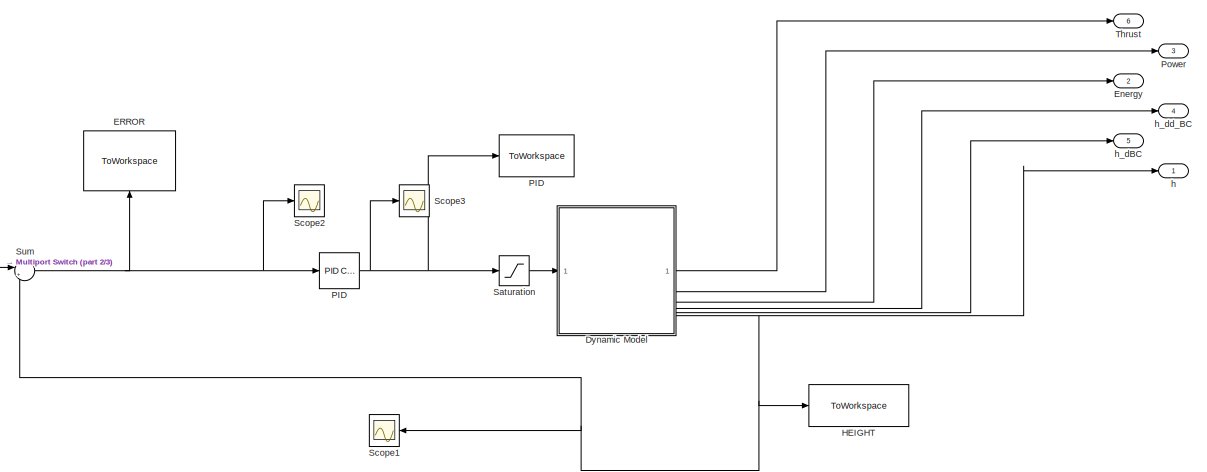
[diagram: root canvas - part 1/3, right side, full height]
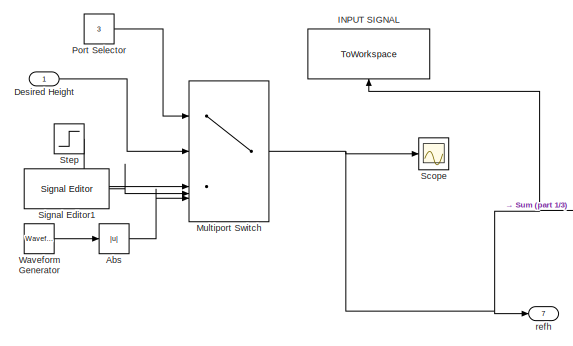
[diagram: root canvas - part 2/3, middle left region]
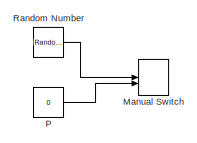
[diagram: root canvas - part 3/3, bottom left region]
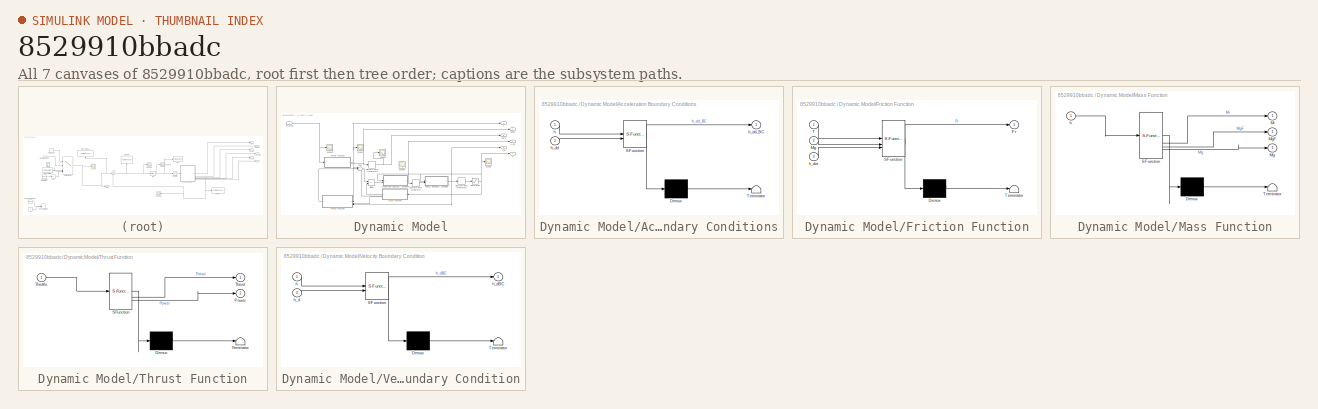
[diagram: thumbnail index - all 7 canvases of the model, root first then tree order]
MODEL slx_8529910bbadc
KIND model
CONFIG AbsTol = auto
CONFIG EnableMultiTasking = off
CONFIG FixedStep = auto
CONFIG MaxStep = auto
CONFIG MinStep = auto
CONFIG RelTol = 1e-3
CONFIG SampleTimeConstraint = Unconstrained
CONFIG SolverName = VariableStepAuto
CONFIG StartTime = 0.0
CONFIG StopTime = 80
BLOCK [Abs] Abs
  SaturateOnIntegerOverflow = off
BLOCK [Inport] Desired Height
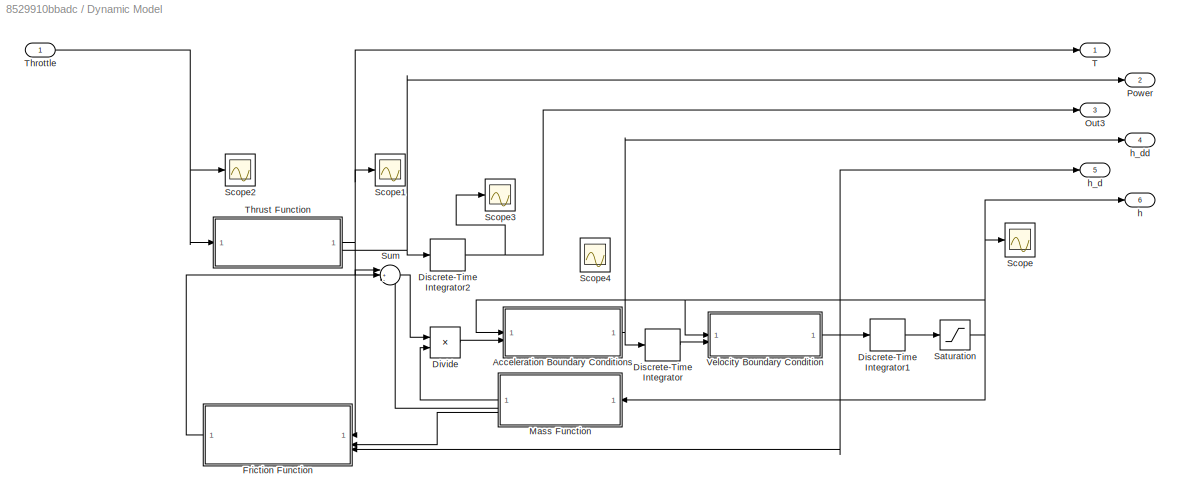
BLOCK [SubSystem] Dynamic Model
BLOCK [SubSystem] Dynamic Model/Acceleration Boundary Conditions
  ErrorFcn = Stateflow.Translate.translate
  PermitHierarchicalResolution = ExplicitOnly
  SFBlockType = MATLAB Function
  TreatAsAtomicUnit = on
BLOCK [Demux] Dynamic Model/Acceleration Boundary Conditions/ Demux 
  Outputs = 1
BLOCK [S-Function] Dynamic Model/Acceleration Boundary Conditions/ SFunction 
  EnableBusSupport = on
  FunctionName = sf_sfun
  PortCounts = [2 2]
  SFcnIsStateOwnerBlock = off
  SFunctionDeploymentMode = off
  Tag = Stateflow S-Function 4
BLOCK [Terminator] Dynamic Model/Acceleration Boundary Conditions/ Terminator 
BLOCK [Inport] Dynamic Model/Acceleration Boundary Conditions/h
BLOCK [Inport] Dynamic Model/Acceleration Boundary Conditions/h_dd
  Port = 2
BLOCK [Outport] Dynamic Model/Acceleration Boundary Conditions/h_dd_BC
BLOCK [DiscreteIntegrator] Dynamic Model/Discrete-Time Integrator
  ICPrevOutput = DiscIntNeverNeededParam
  ICPrevScaledInput = DiscIntNeverNeededParam
  InitialConditionSetting = Auto
  SampleTime = 0.05
BLOCK [DiscreteIntegrator] Dynamic Model/Discrete-Time Integrator1
  ICPrevOutput = DiscIntNeverNeededParam
  ICPrevScaledInput = DiscIntNeverNeededParam
  InitialConditionSetting = Auto
  SampleTime = 0.05
BLOCK [DiscreteIntegrator] Dynamic Model/Discrete-Time Integrator2
  ICPrevOutput = DiscIntNeverNeededParam
  ICPrevScaledInput = DiscIntNeverNeededParam
  InitialConditionSetting = Auto
  SampleTime = 0.05
BLOCK [Product] Dynamic Model/Divide
  Inputs = */
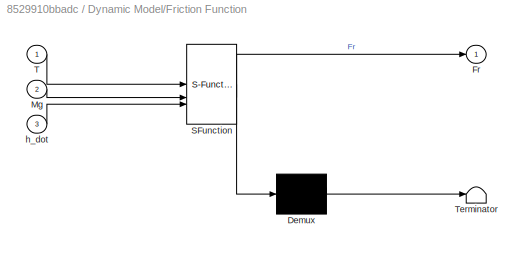
BLOCK [SubSystem] Dynamic Model/Friction Function
  ErrorFcn = Stateflow.Translate.translate
  PermitHierarchicalResolution = ExplicitOnly
  SFBlockType = MATLAB Function
  TreatAsAtomicUnit = on
BLOCK [Demux] Dynamic Model/Friction Function/ Demux 
  Outputs = 1
BLOCK [S-Function] Dynamic Model/Friction Function/ SFunction 
  EnableBusSupport = on
  FunctionName = sf_sfun
  PortCounts = [3 2]
  SFcnIsStateOwnerBlock = off
  SFunctionDeploymentMode = off
  Tag = Stateflow S-Function 3
BLOCK [Terminator] Dynamic Model/Friction Function/ Terminator 
BLOCK [Outport] Dynamic Model/Friction Function/Fr
BLOCK [Inport] Dynamic Model/Friction Function/Mg
  Port = 2
BLOCK [Inport] Dynamic Model/Friction Function/T
BLOCK [Inport] Dynamic Model/Friction Function/h_dot
  Port = 3
BLOCK [SubSystem] Dynamic Model/Mass Function
  ErrorFcn = Stateflow.Translate.translate
  PermitHierarchicalResolution = ExplicitOnly
  SFBlockType = MATLAB Function
  TreatAsAtomicUnit = on
BLOCK [Demux] Dynamic Model/Mass Function/ Demux 
  Outputs = 1
BLOCK [S-Function] Dynamic Model/Mass Function/ SFunction 
  EnableBusSupport = on
  FunctionName = sf_sfun
  PortCounts = [1 4]
  SFcnIsStateOwnerBlock = off
  SFunctionDeploymentMode = off
  Tag = Stateflow S-Function 1
BLOCK [Terminator] Dynamic Model/Mass Function/ Terminator 
BLOCK [Outport] Dynamic Model/Mass Function/Mg
  Port = 3
BLOCK [Outport] Dynamic Model/Mass Function/MgF
  Port = 2
BLOCK [Outport] Dynamic Model/Mass Function/Mi
BLOCK [Inport] Dynamic Model/Mass Function/h
BLOCK [Outport] Dynamic Model/Out3
  Port = 3
BLOCK [Outport] Dynamic Model/Power
  Port = 2
BLOCK [Saturate] Dynamic Model/Saturation
  LowerLimit = 0
  UpperLimit = 1.44
BLOCK [Scope] Dynamic Model/Scope
  Floating = off
  NumInputPorts = 1
  ScopeSpecificationString = Simulink.scopes.TimeScopeBlockCfg('CurrentConfiguration', extmgr.ConfigurationSet(extmgr.Configuration('Core','General UI',true),extmgr.Configuration('Core','Source UI',true),extmgr.Configuration('Sources','WiredSimulink',true),extmgr.Configuration('Visuals','Time Domain',true,'SerializedDisplays',{struct('MinYLimReal','-0.15881','MaxYLimReal','1.42932','YLabelReal','','MinYLimMag','0.00000','MaxY...<+1448ch>
BLOCK [Scope] Dynamic Model/Scope1
  Floating = off
  NumInputPorts = 1
  ScopeSpecificationString = Simulink.scopes.TimeScopeBlockCfg('CurrentConfiguration', extmgr.ConfigurationSet(extmgr.Configuration('Core','General UI',true),extmgr.Configuration('Core','Source UI',true),extmgr.Configuration('Sources','WiredSimulink',true,'DataLoggingVariableName','ScopeData1'),extmgr.Configuration('Visuals','Time Domain',true,'SerializedDisplays',{struct('MinYLimReal','-3.14447','MaxYLimReal','29.14392','YLa...<+1474ch>
BLOCK [Scope] Dynamic Model/Scope2
  Floating = off
  NumInputPorts = 1
  ScopeSpecificationString = Simulink.scopes.TimeScopeBlockCfg('CurrentConfiguration', extmgr.ConfigurationSet(extmgr.Configuration('Core','General UI',true),extmgr.Configuration('Core','Source UI',true),extmgr.Configuration('Sources','WiredSimulink',true,'DataLoggingVariableName','ScopeData2'),extmgr.Configuration('Visuals','Time Domain',true,'SerializedDisplays',{struct('MinYLimReal','-11.25','MaxYLimReal','101.25','YLabelR...<+1448ch>
BLOCK [Scope] Dynamic Model/Scope3
  Floating = off
  NumInputPorts = 1
  ScopeSpecificationString = Simulink.scopes.TimeScopeBlockCfg('CurrentConfiguration', extmgr.ConfigurationSet(extmgr.Configuration('Core','General UI',true),extmgr.Configuration('Core','Source UI',true),extmgr.Configuration('Sources','WiredSimulink',true,'DataLoggingVariableName','ScopeData4'),extmgr.Configuration('Visuals','Time Domain',true,'SerializedDisplays',{struct('MinYLimReal','-4099.52108','MaxYLimReal','36895.68976...<+1499ch>
BLOCK [Scope] Dynamic Model/Scope4
  Floating = off
  NumInputPorts = 1
  ScopeSpecificationString = Simulink.scopes.TimeScopeBlockCfg('CurrentConfiguration', extmgr.ConfigurationSet(extmgr.Configuration('Core','General UI',true),extmgr.Configuration('Core','Source UI',true),extmgr.Configuration('Sources','WiredSimulink',true,'DataLoggingVariableName','ScopeData5'),extmgr.Configuration('Visuals','Time Domain',true,'SerializedDisplays',{struct('MinYLimReal','-1.00000','MaxYLimReal','1.00000','YLab...<+1540ch>
BLOCK [Sum] Dynamic Model/Sum
  Inputs = |+--
BLOCK [Outport] Dynamic Model/T
BLOCK [Inport] Dynamic Model/Throttle
BLOCK [SubSystem] Dynamic Model/Thrust Function
  ErrorFcn = Stateflow.Translate.translate
  PermitHierarchicalResolution = ExplicitOnly
  SFBlockType = MATLAB Function
  TreatAsAtomicUnit = on
BLOCK [Demux] Dynamic Model/Thrust Function/ Demux 
  Outputs = 1
BLOCK [S-Function] Dynamic Model/Thrust Function/ SFunction 
  EnableBusSupport = on
  FunctionName = sf_sfun
  PortCounts = [1 3]
  SFcnIsStateOwnerBlock = off
  SFunctionDeploymentMode = off
  Tag = Stateflow S-Function 2
BLOCK [Terminator] Dynamic Model/Thrust Function/ Terminator 
BLOCK [Outport] Dynamic Model/Thrust Function/Power
  Port = 2
BLOCK [Inport] Dynamic Model/Thrust Function/Throttle
BLOCK [Outport] Dynamic Model/Thrust Function/Thrust
BLOCK [SubSystem] Dynamic Model/Velocity Boundary Condition
  ErrorFcn = Stateflow.Translate.translate
  PermitHierarchicalResolution = ExplicitOnly
  SFBlockType = MATLAB Function
  TreatAsAtomicUnit = on
BLOCK [Demux] Dynamic Model/Velocity Boundary Condition/ Demux 
  Outputs = 1
BLOCK [S-Function] Dynamic Model/Velocity Boundary Condition/ SFunction 
  EnableBusSupport = on
  FunctionName = sf_sfun
  PortCounts = [2 2]
  SFcnIsStateOwnerBlock = off
  SFunctionDeploymentMode = off
  Tag = Stateflow S-Function 5
BLOCK [Terminator] Dynamic Model/Velocity Boundary Condition/ Terminator 
BLOCK [Inport] Dynamic Model/Velocity Boundary Condition/h
BLOCK [Inport] Dynamic Model/Velocity Boundary Condition/h_d
  Port = 2
BLOCK [Outport] Dynamic Model/Velocity Boundary Condition/h_dBC
BLOCK [Outport] Dynamic Model/h
  Port = 6
BLOCK [Outport] Dynamic Model/h_d
  Port = 5
BLOCK [Outport] Dynamic Model/h_dd
  Port = 4
BLOCK [ToWorkspace] ERROR 
  FixptAsFi = on
  MaxDataPoints = inf
  NameLocation = right
  SampleTime = 0.05
  Save2DSignal = 2-D array (concatenate along first dimension)
  SaveFormat = Structure With Time
  VariableName = e_out
BLOCK [Outport] Energy
  Port = 2
BLOCK [ToWorkspace] HEIGHT
  FixptAsFi = on
  MaxDataPoints = inf
  SampleTime = 0.05
  Save2DSignal = 2-D array (concatenate along first dimension)
  SaveFormat = Structure With Time
  VariableName = y_out
BLOCK [ToWorkspace] INPUT SIGNAL
  FixptAsFi = on
  MaxDataPoints = inf
  NameLocation = right
  SampleTime = 0.05
  Save2DSignal = 2-D array (concatenate along first dimension)
  SaveFormat = Structure With Time
  VariableName = in_signal
BLOCK [ManualSwitch] Manual Switch
  CurrentSetting = 0
BLOCK [MultiPortSwitch] Multiport Switch
  InputSameDT = off
  Inputs = 5
  SaturateOnIntegerOverflow = off
BLOCK [Constant] P
  Value = 0
BLOCK [ToWorkspace] PID
  FixptAsFi = on
  MaxDataPoints = inf
  SampleTime = 0.05
  Save2DSignal = 2-D array (concatenate along first dimension)
  SaveFormat = Structure With Time
  VariableName = u_out
BLOCK [Reference] PID   REF=slpidlib/PID Controller
  LibrarySourceBlock = simulink/Discrete/Discrete PID Controller
  SourceBlock = slpidlib/PID Controller
  SourceType = PID 1dof
BLOCK [Constant] Port Selector
  Value = 3
BLOCK [Outport] Power
  Port = 3
BLOCK [RandomNumber] Random Number
  SampleTime = 0.1
  Variance = 0.001
BLOCK [Saturate] Saturation
  LowerLimit = 0
  UpperLimit = 90
BLOCK [Scope] Scope
  Floating = off
  NumInputPorts = 1
  ScopeSpecificationString = Simulink.scopes.TimeScopeBlockCfg('CurrentConfiguration', extmgr.ConfigurationSet(extmgr.Configuration('Core','General UI',true),extmgr.Configuration('Core','Source UI',true),extmgr.Configuration('Sources','WiredSimulink',true,'DataLoggingVariableName','ScopeData1'),extmgr.Configuration('Visuals','Time Domain',true,'SerializedDisplays',{struct('MinYLimReal','-0.1','MaxYLimReal','0.9','YLabelReal',...<+1440ch>
BLOCK [Scope] Scope1
  Floating = off
  NumInputPorts = 1
  ScopeSpecificationString = Simulink.scopes.TimeScopeBlockCfg('CurrentConfiguration', extmgr.ConfigurationSet(extmgr.Configuration('Core','General UI',true),extmgr.Configuration('Core','Source UI',true),extmgr.Configuration('Sources','WiredSimulink',true,'DataLoggingVariableName','ScopeData2'),extmgr.Configuration('Visuals','Time Domain',true,'SerializedDisplays',{struct('MinYLimReal','-0.18','MaxYLimReal','1.62','YLabelReal...<+1478ch>
BLOCK [Scope] Scope2
  Floating = off
  NumInputPorts = 1
  ScopeSpecificationString = Simulink.scopes.TimeScopeBlockCfg('CurrentConfiguration', extmgr.ConfigurationSet(extmgr.Configuration('Core','General UI',true),extmgr.Configuration('Core','Source UI',true),extmgr.Configuration('Sources','WiredSimulink',true,'DataLoggingVariableName','ScopeData3'),extmgr.Configuration('Visuals','Time Domain',true,'SerializedDisplays',{struct('MinYLimReal','-1.72','MaxYLimReal','1.08','YLabelReal...<+1466ch>
BLOCK [Scope] Scope3
  Floating = off
  NumInputPorts = 1
  ScopeSpecificationString = Simulink.scopes.TimeScopeBlockCfg('CurrentConfiguration', extmgr.ConfigurationSet(extmgr.Configuration('Core','General UI',true),extmgr.Configuration('Core','Source UI',true),extmgr.Configuration('Sources','WiredSimulink',true,'DataLoggingVariableName','ScopeData1'),extmgr.Configuration('Visuals','Time Domain',true,'SerializedDisplays',{struct('MinYLimReal','-699.27639','MaxYLimReal','1035.42829',...<+1503ch>
BLOCK [Reference] Signal Editor1  REF=SignalEditorBlockLib/Signal Editor
  SourceBlock = SignalEditorBlockLib/Signal Editor
  SourceType = SignalEditor
  UserDataPersistent = on
BLOCK [Step] Step
  SampleTime = 0.05
  Time = 10
BLOCK [Sum] Sum
  Inputs = |+-
BLOCK [Outport] Thrust
  Port = 6
BLOCK [Reference] Waveform Generator  REF=simulink/Sources/Waveform
Generator
  SourceBlock = simulink/Sources/Waveform\nGenerator
  SourceType = WaveformGenerator
BLOCK [Outport] h
BLOCK [Outport] h_dBC
  Port = 5
BLOCK [Outport] h_dd_BC
  Port = 4
BLOCK [Outport] refh
  Port = 7
LINE Abs:1 -> Multiport Switch:5
LINE Desired Height:1 -> Multiport Switch:2
NET Dynamic Model/Acceleration Boundary Conditions:1 -> Dynamic Model/Discrete-Time Integrator:1, Dynamic Model/h_dd:1
LINE Dynamic Model/Discrete-Time Integrator1:1 -> Dynamic Model/Saturation:1
NET Dynamic Model/Discrete-Time Integrator2:1 -> Dynamic Model/Out3:1, Dynamic Model/Scope3:1
LINE Dynamic Model/Discrete-Time Integrator:1 -> Dynamic Model/Velocity Boundary Condition:2
LINE Dynamic Model/Divide:1 -> Dynamic Model/Acceleration Boundary Conditions:2
LINE Dynamic Model/Friction Function:1 -> Dynamic Model/Sum:2
LINE Dynamic Model/Mass Function:1 -> Dynamic Model/Divide:2
LINE Dynamic Model/Mass Function:2 -> Dynamic Model/Sum:3
LINE Dynamic Model/Mass Function:3 -> Dynamic Model/Friction Function:2
NET Dynamic Model/Saturation:1 -> Dynamic Model/Acceleration Boundary Conditions:1, Dynamic Model/Mass Function:1, Dynamic Model/Scope:1, Dynamic Model/Velocity Boundary Condition:1, Dynamic Model/h:1
LINE Dynamic Model/Sum:1 -> Dynamic Model/Divide:1
NET Dynamic Model/Throttle:1 -> Dynamic Model/Scope2:1, Dynamic Model/Thrust Function:1
NET Dynamic Model/Thrust Function:1 -> Dynamic Model/Friction Function:1, Dynamic Model/Scope1:1, Dynamic Model/Sum:1, Dynamic Model/T:1
NET Dynamic Model/Thrust Function:2 -> Dynamic Model/Discrete-Time Integrator2:1, Dynamic Model/Power:1
NET Dynamic Model/Velocity Boundary Condition:1 -> Dynamic Model/Discrete-Time Integrator1:1, Dynamic Model/Friction Function:3, Dynamic Model/h_d:1
LINE Dynamic Model:1 -> Thrust:1
LINE Dynamic Model:2 -> Power:1
LINE Dynamic Model:3 -> Energy:1
LINE Dynamic Model:4 -> h_dd_BC:1
LINE Dynamic Model:5 -> h_dBC:1
NET Dynamic Model:6 -> HEIGHT:1, Scope1:1, Sum:2, h:1
NET Multiport Switch:1 -> INPUT SIGNAL:1, Scope:1, Sum:1, refh:1
LINE P:1 -> Manual Switch:2
NET PID :1 -> PID:1, Saturation:1, Scope3:1
LINE Port Selector:1 -> Multiport Switch:1
LINE Random Number:1 -> Manual Switch:1
LINE Saturation:1 -> Dynamic Model:1
LINE Signal Editor1:1 -> Multiport Switch:4
LINE Step:1 -> Multiport Switch:3
NET Sum:1 -> ERROR :1, PID :1, Scope2:1
LINE Waveform Generator:1 -> Abs:1
note: NET lines group one-source signal fan-out (src -> all destinations, sorted); 1:1 wires keep LINE
CHART Dynamic Model/Thrust Function states=1 transitions=1
  STATE_LABEL 'eML_blk_kernel()'
  STATE_LABEL 'SCRIPT:\nfunction [Thrust, Power ]= ThrustFunction(Throttle)\n\nS_t = Throttle/100;\n\n%Throttle to Thrust\n\n% Polyfit 6th Order\n\na = 0.451880436962741;\nb = -1.486027191210204;\nc = 1.797219095509746;\nd = -0.984318732289241;\ne = 0.241341383767270;\nf = -0.007579836329288;\ng = 0.000042183273304;\n\nThrust = 2 * (1.0e+03) * (a*S_t^6 + b*S_t^5 + c*S_t^4 + d*S_t^3 + e*S_t^2 + f*S_t + g ); \n\n\n% Polyfit 6th Order...<+257ch>'
CHART Dynamic Model/Friction Function states=1 transitions=1
  STATE_LABEL 'eML_blk_kernel()'
  STATE_LABEL 'SCRIPT:\nfunction Fr = FrictionFunction(T, Mg, h_dot)\n\nCdf = 0.17; %Coefficient of Dynamic Friction\n\n%% geometry *CURRENTLY PLACEHOLDER*\nl_t = 0.1; %Thrust Moment Arm\nl_cg = 0.05; %CG Moment Arm\nl_c = 0.01; %C Moment Arm\n\nif abs(h_dot) == 0\n    Fr = 0.26 * 9.81; %static friction\nelse\n    %% THIS IS A PLACEHOLDER\n    N = (T * l_t - Mg*9.81*l_cg)/l_c; %Normal reaction force \n    Fr = sign(h_dot)*Cdf*...<+12ch>'
CHART Dynamic Model/Acceleration Boundary Conditions states=1 transitions=1
  STATE_LABEL 'eML_blk_kernel()'
  STATE_LABEL 'SCRIPT:\nfunction h_dd_BC = Accel_BC(h,h_dd)\n% Acceleration must be 0 at the top and bottom\nif (h <= 0 && h_dd < 0) || (h >= 1.44 && h_dd > 0)\n    h_dd_BC = 0;\nelse\n    h_dd_BC = h_dd;\nend\n'
CHART Dynamic Model/Velocity Boundary Condition states=1 transitions=1
  STATE_LABEL 'eML_blk_kernel()'
  STATE_LABEL 'SCRIPT:\nfunction h_dBC = Vel_BC(h, h_d)\n\nif (h<=0 && h_d < 0) || (h>=1.44 && h_d > 0)\n    h_dBC = 0;\nelse\n    h_dBC = h_d;\nend\n'
CHART Dynamic Model/Mass Function states=1 transitions=1
  STATE_LABEL 'eML_blk_kernel()'
  STATE_LABEL 'SCRIPT:\nfunction [Mi, MgF, Mg] = MassFunction(h)\n\n%Given Masses in Kg\nMm = 0.328; %Motor Mass\nMa = 0.05; %Arm Mass\nMk = 0.15; %Cart Mass\n\nM_constant = Mm + Mk + Ma;\n\nMc = 2*(0.095*h + 0.532); %mass of cable is function of height\n\nMg = M_constant + Mc; %gravitational load\nMi = Mg + 0.8; % gravitational + carriage + counterweight + 8 sliders\n\nMgF = Mg * 9.81;\n\n\n\n\n\n'
CHART  states=0 transitions=0
CHART  states=0 transitions=0
CHART  states=0 transitions=0
CHART  states=0 transitions=0
CHART  states=0 transitions=0
